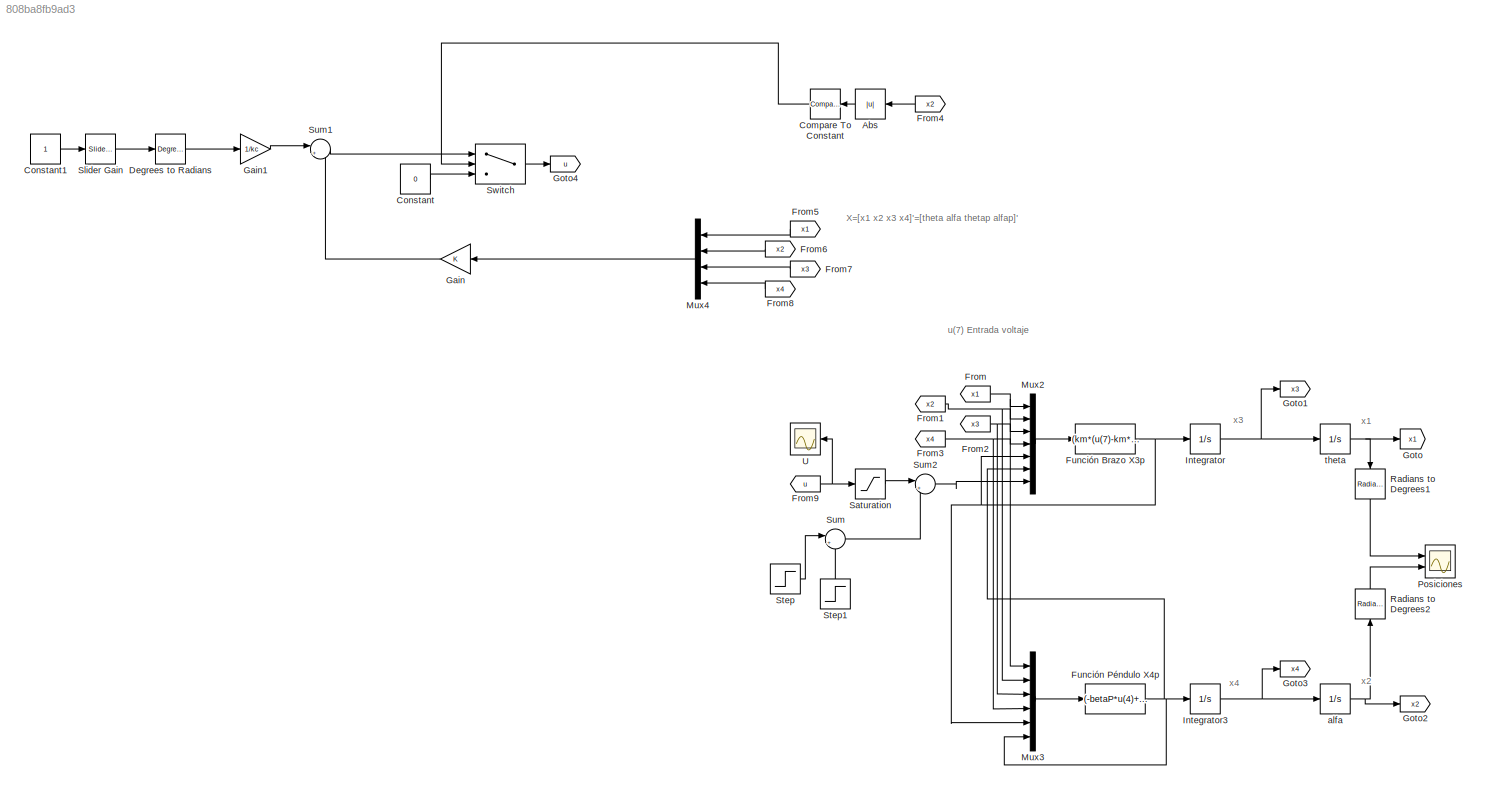
MODEL slx_808ba8fb9ad3
KIND model
CONFIG AbsTol = auto
CONFIG EnableMultiTasking = on
CONFIG FixedStep = 0.002
CONFIG MaxStep = auto
CONFIG MinStep = auto
CONFIG RelTol = 1e-3
CONFIG SampleTimeConstraint = Unconstrained
CONFIG Solver = ode4
CONFIG SolverName = ode4
CONFIG StartTime = 0.0
CONFIG StopTime = 10
BLOCK [Abs] Abs
  SaturateOnIntegerOverflow = off
BLOCK [Reference] Compare To Constant  REF=simulink/Logic and Bit
Operations/Compare
To Constant
  Ports = [1, 1]
  SourceBlock = simulink/Logic and Bit\nOperations/Compare\nTo Constant
  SourceProductBaseCode = SL
  SourceProductName = Simulink
  SourceType = Compare To Constant
BLOCK [Constant] Constant
  Value = 0
BLOCK [Constant] Constant1
BLOCK [Reference] Degrees to Radians  REF=simulink_extras/Transformations/Degrees to
Radians
  Ports = [1, 1]
  SourceBlock = simulink_extras/Transformations/Degrees to\nRadians
  SourceProductBaseCode = SL
  SourceProductName = Simulink
  SourceType = DegreesToRadians
BLOCK [From] From
  GotoTag = x1
BLOCK [From] From1
  GotoTag = x2
BLOCK [From] From2
  GotoTag = x3
BLOCK [From] From3
  GotoTag = x4
BLOCK [From] From4
  GotoTag = x2
BLOCK [From] From5
  GotoTag = x1
BLOCK [From] From6
  GotoTag = x2
BLOCK [From] From7
  GotoTag = x3
BLOCK [From] From8
  GotoTag = x4
BLOCK [From] From9
  GotoTag = u
BLOCK [Fcn] Función Brazo X3p
  Expr = (km*(u(7)-km*u(3))/(Rm)-betaR*u(3)+(Lb*Lcm*Mp*u(4)^2*sin(u(2)))-Lb*Lcm*Mp*u(6)*cos(u(2))-2*Lcm^2*Mp*u(3)*u(4)*cos(u(2))*sin(u(2)))/(Mp*Lb^2-Mp*Lcm^2*cos(u(2))^2+Mp*Lcm^2+Jb)
BLOCK [Fcn] Función Péndulo X4p
  Expr = (-betaP*u(4)+Lcm^2*Mp*Lcm^2*cos(u(2))*sin(u(2))+Lcm*Mp*g*sin(u(2))-Lb*Lcm*Mp*u(5)*cos(u(2)))/(Mp*Lcm^2+Jp)
BLOCK [Gain] Gain
  Gain = K
  Multiplication = Matrix(K*u)
  OutDataTypeStr = Inherit: Inherit via internal rule
  ParamDataTypeStr = Inherit: Inherit via internal rule
  SaturateOnIntegerOverflow = off
BLOCK [Gain] Gain1
  Gain = 1/kc
  Multiplication = Matrix(K*u)
  OutDataTypeStr = Inherit: Inherit via internal rule
  ParamDataTypeStr = Inherit: Inherit via internal rule
  SaturateOnIntegerOverflow = off
BLOCK [Goto] Goto
  GotoTag = x1
BLOCK [Goto] Goto1
  GotoTag = x3
BLOCK [Goto] Goto2
  GotoTag = x2
BLOCK [Goto] Goto3
  GotoTag = x4
BLOCK [Goto] Goto4
  GotoTag = u
BLOCK [Integrator] Integrator
  Ports = [1, 1]
BLOCK [Integrator] Integrator3
  Ports = [1, 1]
BLOCK [Mux] Mux2
  DisplayOption = bar
  Inputs = 7
  Ports = [7, 1]
BLOCK [Mux] Mux3
  DisplayOption = bar
  Inputs = 6
  Ports = [6, 1]
BLOCK [Mux] Mux4
  DisplayOption = bar
  Ports = [4, 1]
BLOCK [Scope] Posiciones
  NumInputPorts = 2
  Ports = [2]
  ScopeSpecificationString = Simulink.scopes.TimeScopeBlockCfg('CurrentConfiguration', extmgr.ConfigurationSet(extmgr.Configuration('Core','General UI',true),extmgr.Configuration('Core','Source UI',true),extmgr.Configuration('Sources','WiredSimulink',true),extmgr.Configuration('Visuals','Time Domain',true,'SerializedDisplays',{struct('MinYLimReal','-15.33341','MaxYLimReal','22.34381','YLabelReal','','MinYLimMag','0.00000','Ma...<+2021ch>
BLOCK [Reference] Radians to Degrees1  REF=simulink_extras/Transformations/Radians
to Degrees
  Ports = [1, 1]
  SourceBlock = simulink_extras/Transformations/Radians\nto Degrees
  SourceProductBaseCode = SL
  SourceProductName = Simulink
  SourceType = RadiansToDegrees
BLOCK [Reference] Radians to Degrees2  REF=simulink_extras/Transformations/Radians
to Degrees
  Ports = [1, 1]
  SourceBlock = simulink_extras/Transformations/Radians\nto Degrees
  SourceProductBaseCode = SL
  SourceProductName = Simulink
  SourceType = RadiansToDegrees
BLOCK [Saturate] Saturation
  InputPortMap = u0
  LowerLimit = -10
  Ports = [1, 1]
  UpperLimit = 10
BLOCK [Reference] Slider Gain  REF=simulink/Math
Operations/Slider
Gain
  Ports = [1, 1]
  SourceBlock = simulink/Math\nOperations/Slider\nGain
  SourceProductBaseCode = SL
  SourceProductName = Simulink
  SourceType = Slider Gain
BLOCK [Step] Step
  After = 5
  SampleTime = 0
  Time = 1.5
BLOCK [Step] Step1
  After = -5
  SampleTime = 0
BLOCK [Sum] Sum
  IconShape = round
  InputSameDT = off
  Inputs = |++
  OutDataTypeStr = Inherit: Inherit via internal rule
  Ports = [2, 1]
  SaturateOnIntegerOverflow = off
BLOCK [Sum] Sum1
  IconShape = round
  InputSameDT = off
  Inputs = |+-
  OutDataTypeStr = Inherit: Inherit via internal rule
  Ports = [2, 1]
  SaturateOnIntegerOverflow = off
BLOCK [Sum] Sum2
  IconShape = round
  InputSameDT = off
  Inputs = |++
  OutDataTypeStr = Inherit: Inherit via internal rule
  Ports = [2, 1]
  SaturateOnIntegerOverflow = off
BLOCK [Switch] Switch
  Criteria = u2 > Threshold
  InputSameDT = off
  SaturateOnIntegerOverflow = off
BLOCK [Scope] U
  NumInputPorts = 1
  Ports = [1]
  ScopeSpecificationString = Simulink.scopes.TimeScopeBlockCfg('CurrentConfiguration', extmgr.ConfigurationSet(extmgr.Configuration('Core','General UI',true),extmgr.Configuration('Core','Source UI',true),extmgr.Configuration('Sources','WiredSimulink',true,'DataLoggingVariableName','ScopeData1'),extmgr.Configuration('Visuals','Time Domain',true,'SerializedDisplays',{struct('MinYLimReal','-20.79996','MaxYLimReal','9.2977','YLab...<+1466ch>
BLOCK [Integrator] alfa
  Ports = [1, 1]
BLOCK [Integrator] theta
  Ports = [1, 1]
ANNOTATION (root): X=[x1 x2 x3 x4]'=[theta alfa thetap alfap]'
ANNOTATION (root): u(7) Entrada voltaje
ANNOTATION (root): x1
ANNOTATION (root): x2
ANNOTATION (root): x3
ANNOTATION (root): x4
LINE Abs:1 -> Compare To Constant:1
LINE Compare To Constant:1 -> Switch:2
LINE Constant1:1 -> Slider Gain:1
LINE Constant:1 -> Switch:3
LINE Degrees to Radians:1 -> Gain1:1
NET From1:1 -> Mux2:2, Mux3:2
NET From2:1 -> Mux2:3, Mux3:3
NET From3:1 -> Mux2:4, Mux3:4
LINE From4:1 -> Abs:1
LINE From5:1 -> Mux4:1
LINE From6:1 -> Mux4:2
LINE From7:1 -> Mux4:3
LINE From8:1 -> Mux4:4
NET From9:1 -> Saturation:1, U:1
NET From:1 -> Mux2:1, Mux3:1
NET Función Brazo X3p:1 -> Integrator:1, Mux2:5, Mux3:5
NET Función Péndulo X4p:1 -> Integrator3:1, Mux2:6, Mux3:6
LINE Gain1:1 -> Sum1:1
LINE Gain:1 -> Sum1:2
NET Integrator3:1 -> Goto3:1, alfa:1
NET Integrator:1 -> Goto1:1, theta:1
LINE Mux2:1 -> Función Brazo X3p:1
LINE Mux3:1 -> Función Péndulo X4p:1
LINE Mux4:1 -> Gain:1
LINE Radians to Degrees1:1 -> Posiciones:1
LINE Radians to Degrees2:1 -> Posiciones:2
LINE Saturation:1 -> Sum2:1
LINE Slider Gain:1 -> Degrees to Radians:1
LINE Step1:1 -> Sum:2
LINE Step:1 -> Sum:1
LINE Sum1:1 -> Switch:1
LINE Sum2:1 -> Mux2:7
LINE Sum:1 -> Sum2:2
LINE Switch:1 -> Goto4:1
NET alfa:1 -> Goto2:1, Radians to Degrees2:1
NET theta:1 -> Goto:1, Radians to Degrees1:1
note: NET lines group one-source signal fan-out (src -> all destinations, sorted); 1:1 wires keep LINE
